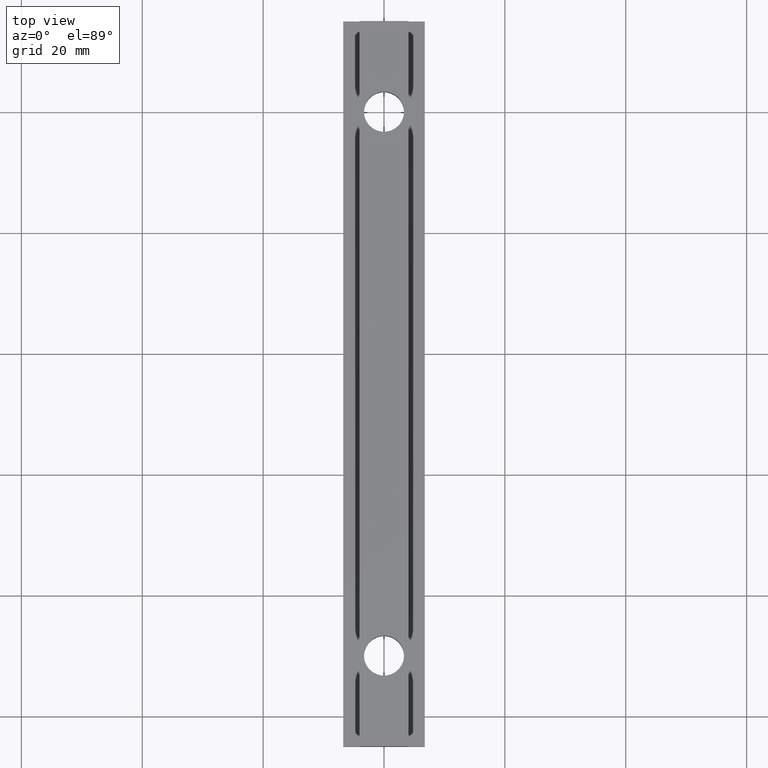
[diagram: clean part render]
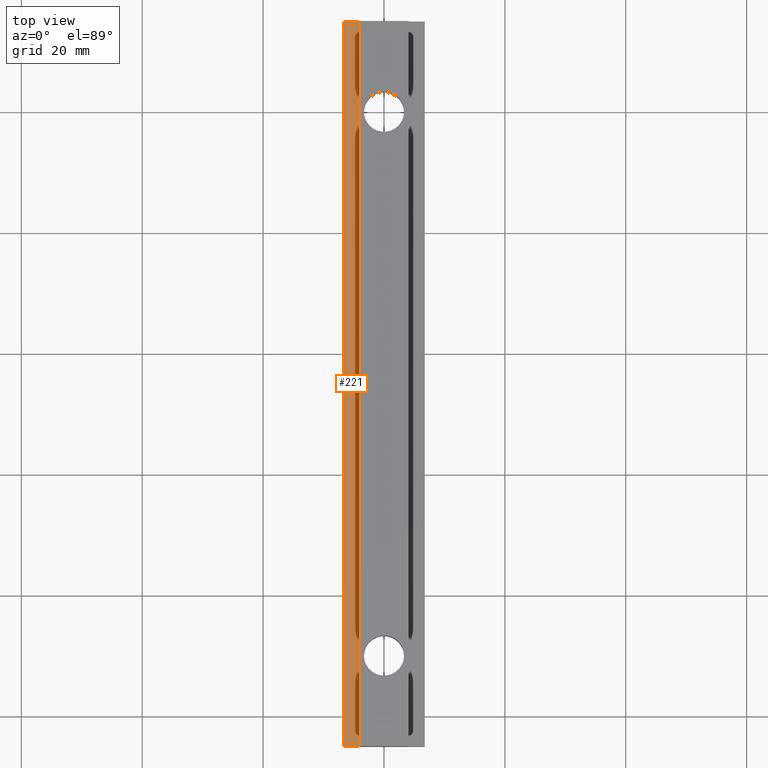
[diagram: same view with one face highlighted and labeled with its STEP entity id]
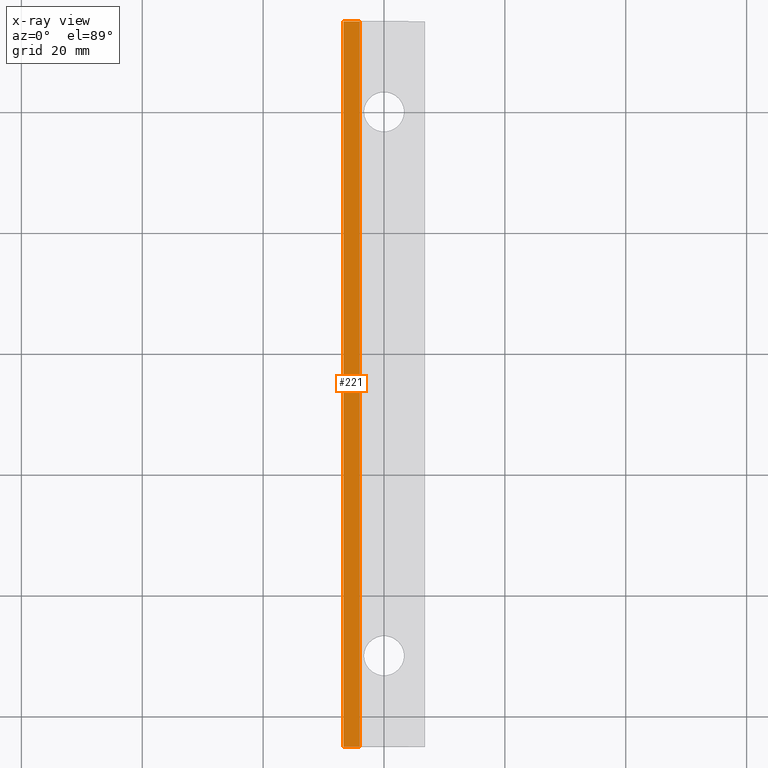
[diagram: x-ray of the same camera — body ghosted, the highlighted face saturated]
A machine part, top view. The second image highlights one B-rep face of the part: STEP entity #221.
The next image is the same camera in x-ray: the body ghosted, the highlighted face saturated — about 0% of this face is hidden behind the body in this view.
In plain terms, the highlighted planar face has unit normal (0, 0, 1).
Its self-contained STEP definition (entity closure, byte-faithful):
#15=LINE('',#321,#39);
#16=LINE('',#323,#40);
#17=LINE('',#325,#41);
#18=LINE('',#326,#42);
#39=VECTOR('',#265,2.6999999999889);
#40=VECTOR('',#266,120.);
#41=VECTOR('',#267,2.6999999999889);
#42=VECTOR('',#268,120.);
#63=PLANE('',#239);
#81=FACE_OUTER_BOUND('',#95,.T.);
#95=EDGE_LOOP('',(#165,#166,#167,#168));
#117=VERTEX_POINT('',#319);
#118=VERTEX_POINT('',#320);
#119=VERTEX_POINT('',#322);
#120=VERTEX_POINT('',#324);
#137=EDGE_CURVE('',#117,#118,#15,.T.);
#138=EDGE_CURVE('',#118,#119,#16,.T.);
#139=EDGE_CURVE('',#120,#119,#17,.T.);
#140=EDGE_CURVE('',#117,#120,#18,.T.);
#165=ORIENTED_EDGE('',*,*,#137,.T.);
#166=ORIENTED_EDGE('',*,*,#138,.T.);
#167=ORIENTED_EDGE('',*,*,#139,.F.);
#168=ORIENTED_EDGE('',*,*,#140,.F.);
#221=ADVANCED_FACE('',(#81),#63,.T.);
#239=AXIS2_PLACEMENT_3D('',#318,#263,#264);
#263=DIRECTION('center_axis',(0.,0.,1.));
#264=DIRECTION('ref_axis',(1.,0.,0.));
#265=DIRECTION('',(-1.,0.,0.));
#266=DIRECTION('',(0.,-1.,0.));
#267=DIRECTION('',(-1.,0.,0.));
#268=DIRECTION('',(0.,-1.,0.));
#318=CARTESIAN_POINT('Origin',(-4.04999999998381,15.0000000004197,3.89999999998463));
#319=CARTESIAN_POINT('',(-4.04999999998381,15.0000000004197,3.89999999998463));
#320=CARTESIAN_POINT('',(-6.74999999997272,15.0000000004197,3.89999999998463));
#321=CARTESIAN_POINT('',(-4.04999999998381,15.0000000004197,3.89999999998463));
#322=CARTESIAN_POINT('',(-6.74999999997272,-104.99999999958,3.89999999998463));
#323=CARTESIAN_POINT('',(-6.74999999997272,15.0000000004197,3.89999999998463));
#324=CARTESIAN_POINT('',(-4.04999999998381,-104.99999999958,3.89999999998463));
#325=CARTESIAN_POINT('',(-4.04999999998381,-104.99999999958,3.89999999998463));
#326=CARTESIAN_POINT('',(-4.04999999998381,-91.9615045242668,3.89999999998463));